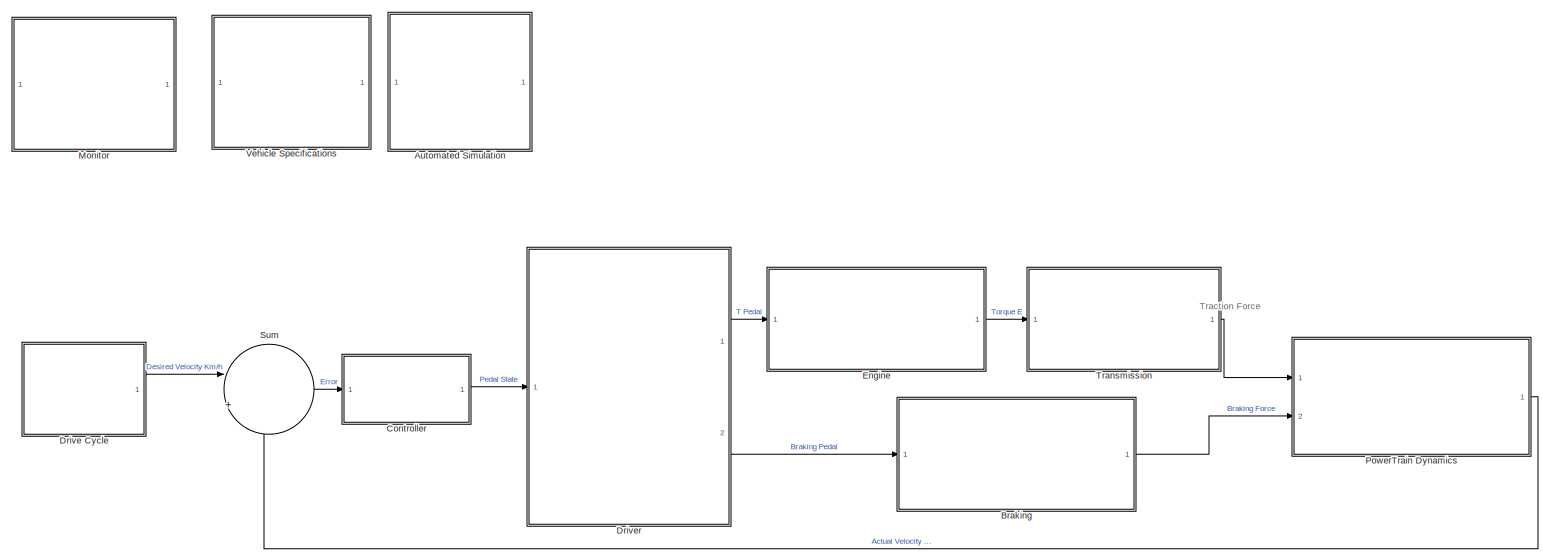
[diagram: root canvas - part 1/1, most of the canvas]
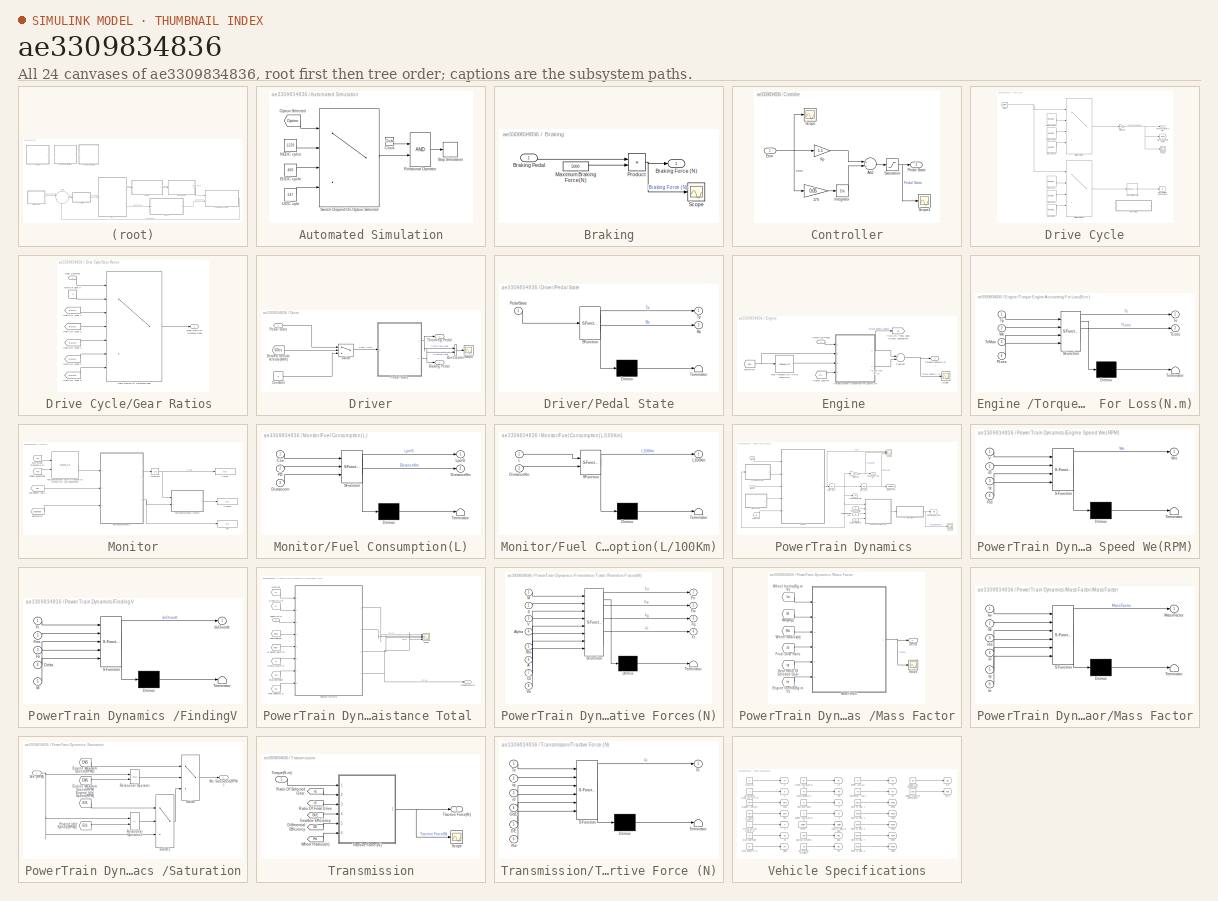
[diagram: thumbnail index - all 24 canvases of the model, root first then tree order]
MODEL slx_ae3309834836
KIND model
CONFIG AbsTol = auto
CONFIG FixedStep = 0.1
CONFIG MaxStep = auto
CONFIG MinStep = auto
CONFIG RelTol = 1e-3
CONFIG SampleTimeConstraint = Unconstrained
CONFIG Solver = ode3
CONFIG SolverMode = Auto
CONFIG SolverName = ode3
CONFIG StartTime = 0.0
CONFIG StopTime = 1220
BLOCK [SubSystem] Automated Simulation
  Ports = []
  RequestExecContextInheritance = off
  Variant = off
BLOCK [Clock] Automated Simulation/Clock
BLOCK [Constant] Automated Simulation/EUDC cycle
  Value = 400
BLOCK [Constant] Automated Simulation/NEDC cylce
  Value = 1220
BLOCK [From] Automated Simulation/Option Selected
  GotoTag = Option
  TagVisibility = global
BLOCK [RelationalOperator] Automated Simulation/Relational Operator
  InputSameDT = off
  OutDataTypeStr = boolean
  Ports = [2, 1]
BLOCK [Stop] Automated Simulation/Stop Simulation
BLOCK [MultiPortSwitch] Automated Simulation/Switch Depend On Option Selected 
  InputSameDT = off
  Ports = [4, 1]
  SaturateOnIntegerOverflow = off
BLOCK [Constant] Automated Simulation/UDC cyle
  Value = 247
BLOCK [SubSystem] Braking
  Ports = [1, 1]
  RequestExecContextInheritance = off
  Variant = off
BLOCK [Outport] Braking/Braking Force (N)
  IconDisplay = Port number
BLOCK [Inport] Braking/Braking Pedal
  IconDisplay = Port number
BLOCK [Constant] Braking/Maximum Braking Force(N)
  Value = 5000
BLOCK [Product] Braking/Product
  InputSameDT = off
  OutDataTypeStr = Inherit: Inherit via internal rule
  Ports = [2, 1]
  RndMeth = Floor
  SaturateOnIntegerOverflow = off
BLOCK [Scope] Braking/Scope
  Ports = [1]
  ScopeSpecificationString = C++SS(StrPVP('Location','[1, 48, 1367, 727]'),StrPVP('Open','off'),MxPVP('AxesTitles',24,'struct(''axes1'',''%<SignalLabel>'')'),MxPVP('ScopeGraphics',28,'struct(''FigureColor'',''[0.5 0.5 0.5]'',''AxesColor'',''[0 0 0]'',''AxesTickColor'',''[1 1 1]'',''LineColors'',''[1 1 0;1 0 1;0 1 1;1 0 0;0 1 0;0 0 1]'',''LineStyles'',''-|-|-|-|-|-'',''LineWidths'',''[0.5 0.5 0.5 0.5 0.5 0.5]'',''MarkerStyles'...<+337ch>
BLOCK [SubSystem] Controller
  Ports = [1, 1]
  RequestExecContextInheritance = off
  Variant = off
BLOCK [Gain] Controller/1//Ti
  Gain = 0.05
  OutDataTypeStr = Inherit: Inherit via internal rule
  ParamDataTypeStr = Inherit: Inherit via internal rule
  SaturateOnIntegerOverflow = off
BLOCK [Sum] Controller/Add
  InputSameDT = off
  OutDataTypeStr = Inherit: Inherit via internal rule
  Ports = [2, 1]
  SaturateOnIntegerOverflow = off
BLOCK [Inport] Controller/Error
  IconDisplay = Port number
BLOCK [Integrator] Controller/Integrator
  Ports = [1, 1]
BLOCK [Gain] Controller/Kp
  Gain = 1.5
  OutDataTypeStr = Inherit: Inherit via internal rule
  ParamDataTypeStr = Inherit: Inherit via internal rule
  SaturateOnIntegerOverflow = off
BLOCK [Outport] Controller/Pedal State
  IconDisplay = Port number
BLOCK [Saturate] Controller/Saturation
  InputPortMap = u0
  LowerLimit = -1
  Ports = [1, 1]
  UpperLimit = 1
BLOCK [Scope] Controller/Scope
  Ports = [1]
  ScopeSpecificationString = C++SS(StrPVP('Location','[5, 48, 1371, 727]'),StrPVP('Open','off'),MxPVP('AxesTitles',24,'struct(''axes1'',''%<SignalLabel>'')'),MxPVP('ScopeGraphics',28,'struct(''FigureColor'',''[0.5 0.5 0.5]'',''AxesColor'',''[0 0 0]'',''AxesTickColor'',''[1 1 1]'',''LineColors'',''[1 1 0;1 0 1;0 1 1;1 0 0;0 1 0;0 0 1]'',''LineStyles'',''-|-|-|-|-|-'',''LineWidths'',''[0.5 0.5 0.5 0.5 0.5 0.5]'',''MarkerStyles'...<+342ch>
BLOCK [Scope] Controller/Scope1
  Ports = [1]
  ScopeSpecificationString = C++SS(StrPVP('Location','[5, 48, 1371, 727]'),StrPVP('Open','off'),MxPVP('AxesTitles',24,'struct(''axes1'',''%<SignalLabel>'')'),MxPVP('ScopeGraphics',28,'struct(''FigureColor'',''[0.5 0.5 0.5]'',''AxesColor'',''[0 0 0]'',''AxesTickColor'',''[1 1 1]'',''LineColors'',''[1 1 0;1 0 1;0 1 1;1 0 0;0 1 0;0 0 1]'',''LineStyles'',''-|-|-|-|-|-'',''LineWidths'',''[0.5 0.5 0.5 0.5 0.5 0.5]'',''MarkerStyles'...<+339ch>
BLOCK [SubSystem] Drive Cycle
  Ports = [0, 1]
  RequestExecContextInheritance = off
  Variant = off
BLOCK [Goto] Drive Cycle/Desired Velocity (Km//h)
  GotoTag = VDes
  TagVisibility = global
BLOCK [Outport] Drive Cycle/Desired Velocity(Km//h)
  IconDisplay = Port number
BLOCK [Reference] Drive Cycle/EUDC(Gear)  REF=simulink/Sources/Repeating
Sequence
  Ports = [0, 1]
  SourceBlock = simulink/Sources/Repeating\nSequence
  SourceType = Repeating table
BLOCK [Reference] Drive Cycle/EUDC(Speed)  REF=simulink/Sources/Repeating
Sequence
  Ports = [0, 1]
  SourceBlock = simulink/Sources/Repeating\nSequence
  SourceType = Repeating table
BLOCK [Goto] Drive Cycle/Gear Ratio of Selected Gear
  GotoTag = ig
  TagVisibility = global
BLOCK [SubSystem] Drive Cycle/Gear Ratios 
  Ports = [1, 1]
  RequestExecContextInheritance = off
  Variant = off
BLOCK [Outport] Drive Cycle/Gear Ratios /Gear Ratio Of Selected Gear
  IconDisplay = Port number
BLOCK [MultiPortSwitch] Drive Cycle/Gear Ratios /Gear Ratios Of Selected Gear
  DataPortIndices = {0,1,2,3,4,5}
  DataPortOrder = Specify indices
  InputSameDT = off
  Inputs = 6
  Ports = [7, 1]
  SaturateOnIntegerOverflow = off
BLOCK [Inport] Drive Cycle/Gear Ratios /Gear Selected
  IconDisplay = Port number
BLOCK [From] Drive Cycle/Gear Ratios /Ratio Of Gear 1 
  GotoTag = ROG1
  TagVisibility = global
BLOCK [From] Drive Cycle/Gear Ratios /Ratio Of Gear 2 
  GotoTag = ROG2
  TagVisibility = global
BLOCK [From] Drive Cycle/Gear Ratios /Ratio Of Gear 3 
  GotoTag = ROG3
  TagVisibility = global
BLOCK [From] Drive Cycle/Gear Ratios /Ratio Of Gear 4 
  GotoTag = ROG4
  TagVisibility = global
BLOCK [From] Drive Cycle/Gear Ratios /Ratio Of Gear 5 
  GotoTag = ROG5
  TagVisibility = global
BLOCK [Constant] Drive Cycle/Gear Ratios /Ratio of gear 0
  Value = 0
BLOCK [Lookup_n-D] Drive Cycle/Gear Ratios Table 
  BreakpointsForDimension1 = [0 1 2 3 4 5]
  NumberOfTableDimensions = 1
  Ports = [1, 1]
  RndMeth = Simplest
  Table = [0 3.62 2.22 1.51 1.08 0.85]
BLOCK [MultiPortSwitch] Drive Cycle/Multiport Switch
  InputSameDT = off
  Ports = [4, 1]
  SaturateOnIntegerOverflow = off
BLOCK [MultiPortSwitch] Drive Cycle/Multiport Switch2
  InputSameDT = off
  Ports = [4, 1]
  SaturateOnIntegerOverflow = off
BLOCK [Reference] Drive Cycle/NEDC(Gear)   REF=simulink/Sources/Repeating
Sequence
  Ports = [0, 1]
  SourceBlock = simulink/Sources/Repeating\nSequence
  SourceType = Repeating table
BLOCK [Reference] Drive Cycle/NEDC(Speed)   REF=simulink/Sources/Repeating
Sequence
  Ports = [0, 1]
  SourceBlock = simulink/Sources/Repeating\nSequence
  SourceType = Repeating table
BLOCK [From] Drive Cycle/Option
  GotoTag = Option
  TagVisibility = global
BLOCK [Scope] Drive Cycle/Scope
  Ports = [1]
  ScopeSpecificationString = C++SS(StrPVP('Location','[1, 48, 1367, 727]'),StrPVP('Open','off'),MxPVP('AxesTitles',24,'struct(''axes1'',''%<SignalLabel>'')'),MxPVP('ScopeGraphics',28,'struct(''FigureColor'',''[0.5 0.5 0.5]'',''AxesColor'',''[0 0 0]'',''AxesTickColor'',''[1 1 1]'',''LineColors'',''[1 1 0;1 0 1;0 1 1;1 0 0;0 1 0;0 0 1]'',''LineStyles'',''-|-|-|-|-|-'',''LineWidths'',''[0.5 0.5 0.5 0.5 0.5 0.5]'',''MarkerStyles'...<+297ch>
BLOCK [Reference] Drive Cycle/UDC(Gear)  REF=simulink/Sources/Repeating
Sequence
  Ports = [0, 1]
  SourceBlock = simulink/Sources/Repeating\nSequence
  SourceType = Repeating table
BLOCK [Reference] Drive Cycle/UDC(Speed)  REF=simulink/Sources/Repeating
Sequence
  Ports = [0, 1]
  SourceBlock = simulink/Sources/Repeating\nSequence
  SourceType = Repeating table
BLOCK [Gain] Drive Cycle/m//s to Km//h
  Gain = 3.6
  OutDataTypeStr = Inherit: Inherit via internal rule
  ParamDataTypeStr = Inherit: Inherit via internal rule
  SaturateOnIntegerOverflow = off
BLOCK [SubSystem] Driver
  Ports = [1, 2]
  RequestExecContextInheritance = off
  Variant = off
BLOCK [Outport] Driver/Braking Pedal
  IconDisplay = Port number
  Port = 2
BLOCK [BusCreator] Driver/Bus Creator
  DisplayOption = bar
  InheritFromInputs = on
  Inputs = 2
  Ports = [2, 1]
BLOCK [Constant] Driver/Constant
  Value = 0
BLOCK [From] Driver/Desired Vehicle velocity (km//h)
  GotoTag = VDes
  TagVisibility = global
BLOCK [SubSystem] Driver/Pedal State
  ErrorFcn = Stateflow.Translate.translate
  PermitHierarchicalResolution = ExplicitOnly
  Ports = [1, 2]
  RequestExecContextInheritance = off
  SFBlockType = MATLAB Function
  TreatAsAtomicUnit = on
  Variant = off
BLOCK [Inport] Driver/Pedal State 
  IconDisplay = Port number
BLOCK [Demux] Driver/Pedal State/ Demux 
  Outputs = 1
  Ports = [1, 1]
BLOCK [S-Function] Driver/Pedal State/ SFunction 
  EnableBusSupport = on
  FunctionName = sf_sfun
  PortCounts = [1 3]
  Ports = [1, 3]
  SFunctionDeploymentMode = off
  Tag = Stateflow S-Function PowerTrainModeling 9
BLOCK [Terminator] Driver/Pedal State/ Terminator 
BLOCK [Outport] Driver/Pedal State/Bp
  IconDisplay = Port number
  Port = 2
BLOCK [Inport] Driver/Pedal State/PedalState
  IconDisplay = Port number
BLOCK [Outport] Driver/Pedal State/Tp
  IconDisplay = Port number
BLOCK [Scope] Driver/Scope
  Ports = [1]
  ScopeSpecificationString = C++SS(StrPVP('Location','[5, 48, 1367, 727]'),StrPVP('Open','off'),MxPVP('AxesTitles',24,'struct(''axes1'',''%<SignalLabel>'')'),MxPVP('ScopeGraphics',28,'struct(''FigureColor'',''[0.5 0.5 0.5]'',''AxesColor'',''[0 0 0]'',''AxesTickColor'',''[1 1 1]'',''LineColors'',''[1 1 0;1 0 1;0 1 1;1 0 0;0 1 0;0 0 1]'',''LineStyles'',''-|-|-|-|-|-'',''LineWidths'',''[0.5 0.5 0.5 0.5 0.5 0.5]'',''MarkerStyles'...<+297ch>
BLOCK [Switch] Driver/Switch
  Criteria = u2 > Threshold
  InputSameDT = off
  SaturateOnIntegerOverflow = off
  Threshold = 0.1
BLOCK [Outport] Driver/Throttling Pedal
  IconDisplay = Port number
BLOCK [SubSystem] Engine 
  Ports = [1, 1]
  RequestExecContextInheritance = off
  Variant = off
BLOCK [Lookup_n-D] Engine /Max Torque(N.m) In Fct We(RPM)
  BreakpointsForDimension1 = [500\n1000\n1500\n2000\n2500\n3000\n3500\n4000\n4500\n5000\n5500\n6000\n]
  NumberOfTableDimensions = 1
  Ports = [1, 1]
  RndMeth = Simplest
  Table = [112.32\n134.16\n146.64\n158.34\n165.36\n162.24\n159.12\n159.9\n165.36\n164.58\n160.68\n151.32\n]
BLOCK [From] Engine /Power Loss(W)
  GotoTag = PL
  TagVisibility = global
BLOCK [Scope] Engine /Scope
  Ports = [1]
  ScopeSpecificationString = C++SS(StrPVP('Location','[5, 48, 1367, 727]'),StrPVP('Open','off'),MxPVP('AxesTitles',24,'struct(''axes1'',''%<SignalLabel>'')'),MxPVP('ScopeGraphics',28,'struct(''FigureColor'',''[0.5 0.5 0.5]'',''AxesColor'',''[0 0 0]'',''AxesTickColor'',''[1 1 1]'',''LineColors'',''[1 1 0;1 0 1;0 1 1;1 0 0;0 1 0;0 0 1]'',''LineStyles'',''-|-|-|-|-|-'',''LineWidths'',''[0.5 0.5 0.5 0.5 0.5 0.5]'',''MarkerStyles'...<+414ch>
BLOCK [Sum] Engine /Subtract
  InputSameDT = off
  Inputs = +-
  OutDataTypeStr = Inherit: Inherit via internal rule
  Ports = [2, 1]
  SaturateOnIntegerOverflow = off
BLOCK [Goto] Engine /Te(N.m) Total used to compute Fuel consumption
  GotoTag = Te
  TagVisibility = global
BLOCK [Inport] Engine /Throttling Pedal
  IconDisplay = Port number
BLOCK [SubSystem] Engine /Torque Engine Accounting For Loss(N.m)
  ErrorFcn = Stateflow.Translate.translate
  PermitHierarchicalResolution = ExplicitOnly
  Ports = [4, 2]
  RequestExecContextInheritance = off
  SFBlockType = MATLAB Function
  TreatAsAtomicUnit = on
  Variant = off
BLOCK [Demux] Engine /Torque Engine Accounting For Loss(N.m)/ Demux 
  Outputs = 1
  Ports = [1, 1]
BLOCK [S-Function] Engine /Torque Engine Accounting For Loss(N.m)/ SFunction 
  EnableBusSupport = on
  FunctionName = sf_sfun
  PortCounts = [4 3]
  Ports = [4, 3]
  SFunctionDeploymentMode = off
  Tag = Stateflow S-Function PowerTrainModeling 6
BLOCK [Terminator] Engine /Torque Engine Accounting For Loss(N.m)/ Terminator 
BLOCK [Inport] Engine /Torque Engine Accounting For Loss(N.m)/PLoss
  IconDisplay = Port number
  Port = 4
BLOCK [Outport] Engine /Torque Engine Accounting For Loss(N.m)/TLoss
  IconDisplay = Port number
  Port = 2
BLOCK [Outport] Engine /Torque Engine Accounting For Loss(N.m)/Te
  IconDisplay = Port number
BLOCK [Inport] Engine /Torque Engine Accounting For Loss(N.m)/TeMax
  IconDisplay = Port number
  Port = 3
BLOCK [Inport] Engine /Torque Engine Accounting For Loss(N.m)/Tp
  IconDisplay = Port number
BLOCK [Inport] Engine /Torque Engine Accounting For Loss(N.m)/We
  IconDisplay = Port number
  Port = 2
BLOCK [Outport] Engine /Torque Engine(N.m)
  IconDisplay = Port number
BLOCK [From] Engine /We(RPM)
  GotoTag = We
  TagVisibility = global
BLOCK [SubSystem] Monitor
  Ports = []
  RequestExecContextInheritance = off
  Variant = off
BLOCK [From] Monitor/Distance(m)
  GotoTag = Distance
  TagVisibility = global
BLOCK [From] Monitor/Engine Speed(RPM)
  GotoTag = We
  TagVisibility = global
BLOCK [Lookup_n-D] Monitor/Fuel Consumption (Kg//h) in function Of Torque(N.m) and Speed(RPM)
  BreakpointsForDimension1 = [15.6\n31.2\n46.8\n62.4\n78\n93.6\n109.2\n124.8\n140.4\n156\n171.6\n]
  BreakpointsForDimension2 = [500	1000	1500	2000	2500	3000	3500	4000	4500	5000	5500	6000\n]
  Ports = [2, 1]
  RndMeth = Simplest
  Table = [0.50	1.00	1.50	1.94	2.28	2.56	2.68	3.41	3.97	5.59	6.79	7.41\n0.72	1.32	1.99	2.59	3.12	3.58	3.89	4.66	5.77	7.53	9.19	10.37\n0.91	1.65	2.54	3.28	3.93	4.58	4.94	6.22	7.75	9.26	11.35	12.70\n1.08	2.01	3.00	3.93	4.65	5.47	6.42	7.95	9.32	10.88	13.13	14.68\n1.25	2.32	3.44	4.50	5.44	6.44	7.92	9.23	10.78	12.50	14.72	16.41\n1.53	2.81	3.86	5.08	6.04	7.52	9.18	10.80	12.31	13.94	15.91	18.42\n1.73	3.23	4.37	5.60	7.00...<+313ch>
BLOCK [SubSystem] Monitor/Fuel Consumption(L)
  ErrorFcn = Stateflow.Translate.translate
  PermitHierarchicalResolution = ExplicitOnly
  Ports = [3, 2]
  RequestExecContextInheritance = off
  SFBlockType = MATLAB Function
  TreatAsAtomicUnit = on
  Variant = off
BLOCK [Demux] Monitor/Fuel Consumption(L)/ Demux 
  Outputs = 1
  Ports = [1, 1]
BLOCK [S-Function] Monitor/Fuel Consumption(L)/ SFunction 
  EnableBusSupport = on
  FunctionName = sf_sfun
  PortCounts = [3 3]
  Ports = [3, 3]
  SFunctionDeploymentMode = off
  Tag = Stateflow S-Function PowerTrainModeling 7
BLOCK [Terminator] Monitor/Fuel Consumption(L)/ Terminator 
BLOCK [Inport] Monitor/Fuel Consumption(L)/Con
  IconDisplay = Port number
BLOCK [Outport] Monitor/Fuel Consumption(L)/DistanceKm
  IconDisplay = Port number
  Port = 2
BLOCK [Inport] Monitor/Fuel Consumption(L)/Distancem
  IconDisplay = Port number
  Port = 3
BLOCK [Inport] Monitor/Fuel Consumption(L)/FD
  IconDisplay = Port number
  Port = 2
BLOCK [Outport] Monitor/Fuel Consumption(L)/LperS
  IconDisplay = Port number
BLOCK [SubSystem] Monitor/Fuel Consumption(L//100Km)
  ErrorFcn = Stateflow.Translate.translate
  PermitHierarchicalResolution = ExplicitOnly
  Ports = [2, 1]
  RequestExecContextInheritance = off
  SFBlockType = MATLAB Function
  TreatAsAtomicUnit = on
  Variant = off
BLOCK [Demux] Monitor/Fuel Consumption(L//100Km)/ Demux 
  Outputs = 1
  Ports = [1, 1]
BLOCK [S-Function] Monitor/Fuel Consumption(L//100Km)/ SFunction 
  EnableBusSupport = on
  FunctionName = sf_sfun
  PortCounts = [2 2]
  Ports = [2, 2]
  SFunctionDeploymentMode = off
  Tag = Stateflow S-Function PowerTrainModeling 8
BLOCK [Terminator] Monitor/Fuel Consumption(L//100Km)/ Terminator 
BLOCK [Inport] Monitor/Fuel Consumption(L//100Km)/DistanceKm
  IconDisplay = Port number
  Port = 2
BLOCK [Inport] Monitor/Fuel Consumption(L//100Km)/L
  IconDisplay = Port number
BLOCK [Outport] Monitor/Fuel Consumption(L//100Km)/L100Km
  IconDisplay = Port number
BLOCK [From] Monitor/Fuel Density (Kg//L)
  GotoTag = FD
  TagVisibility = global
BLOCK [Integrator] Monitor/Integrator
  Ports = [1, 1]
BLOCK [Display] Monitor/Km
  Decimation = 1
  Ports = [1]
BLOCK [Display] Monitor/L//100Km
  Decimation = 1
  Ports = [1]
BLOCK [Display] Monitor/L//Cycle
  Decimation = 1
  Ports = [1]
BLOCK [From] Monitor/Total Torque Produced(N.m)
  GotoTag = Te
  TagVisibility = global
BLOCK [SubSystem] PowerTrain Dynamics 
  Ports = [2, 1]
  RequestExecContextInheritance = off
  Variant = off
BLOCK [Outport] PowerTrain Dynamics / Actual Velocity(Km//h)
  IconDisplay = Port number
BLOCK [Goto] PowerTrain Dynamics /Actual Velocity(m//s)
  GotoTag = Va
  TagVisibility = global
BLOCK [Goto] PowerTrain Dynamics /Distance(m)
  GotoTag = Distance
  TagVisibility = global
BLOCK [SubSystem] PowerTrain Dynamics /Engine  Speed We(RPM)
  ErrorFcn = Stateflow.Translate.translate
  PermitHierarchicalResolution = ExplicitOnly
  Ports = [4, 1]
  RequestExecContextInheritance = off
  SFBlockType = MATLAB Function
  TreatAsAtomicUnit = on
  Variant = off
BLOCK [Demux] PowerTrain Dynamics /Engine  Speed We(RPM)/ Demux 
  Outputs = 1
  Ports = [1, 1]
BLOCK [S-Function] PowerTrain Dynamics /Engine  Speed We(RPM)/ SFunction 
  EnableBusSupport = on
  FunctionName = sf_sfun
  PortCounts = [4 2]
  Ports = [4, 2]
  SFunctionDeploymentMode = off
  Tag = Stateflow S-Function PowerTrainModeling 4
BLOCK [Terminator] PowerTrain Dynamics /Engine  Speed We(RPM)/ Terminator 
BLOCK [Inport] PowerTrain Dynamics /Engine  Speed We(RPM)/Rd
  IconDisplay = Port number
  Port = 4
BLOCK [Inport] PowerTrain Dynamics /Engine  Speed We(RPM)/V
  IconDisplay = Port number
BLOCK [Outport] PowerTrain Dynamics /Engine  Speed We(RPM)/We
  IconDisplay = Port number
BLOCK [Inport] PowerTrain Dynamics /Engine  Speed We(RPM)/i0
  IconDisplay = Port number
  Port = 2
BLOCK [Inport] PowerTrain Dynamics /Engine  Speed We(RPM)/ig
  IconDisplay = Port number
  Port = 3
BLOCK [Inport] PowerTrain Dynamics /Fb(N)
  IconDisplay = Port number
  Port = 2
BLOCK [From] PowerTrain Dynamics /Final Drive Ratio
  GotoTag = i0
  TagVisibility = global
BLOCK [SubSystem] PowerTrain Dynamics /FindingV
  ErrorFcn = Stateflow.Translate.translate
  PermitHierarchicalResolution = ExplicitOnly
  Ports = [5, 1]
  RequestExecContextInheritance = off
  SFBlockType = MATLAB Function
  TreatAsAtomicUnit = on
  Variant = off
BLOCK [Demux] PowerTrain Dynamics /FindingV/ Demux 
  Outputs = 1
  Ports = [1, 1]
BLOCK [S-Function] PowerTrain Dynamics /FindingV/ SFunction 
  EnableBusSupport = on
  FunctionName = sf_sfun
  PortCounts = [5 2]
  Ports = [5, 2]
  SFunctionDeploymentMode = off
  Tag = Stateflow S-Function PowerTrainModeling 3
BLOCK [Terminator] PowerTrain Dynamics /FindingV/ Terminator 
BLOCK [Inport] PowerTrain Dynamics /FindingV/Delta
  IconDisplay = Port number
  Port = 4
BLOCK [Inport] PowerTrain Dynamics /FindingV/Fb
  IconDisplay = Port number
  Port = 3
BLOCK [Inport] PowerTrain Dynamics /FindingV/Fres
  IconDisplay = Port number
  Port = 2
BLOCK [Inport] PowerTrain Dynamics /FindingV/Ft
  IconDisplay = Port number
BLOCK [Inport] PowerTrain Dynamics /FindingV/M
  IconDisplay = Port number
  Port = 5
BLOCK [Outport] PowerTrain Dynamics /FindingV/dvOverdt
  IconDisplay = Port number
BLOCK [SubSystem] PowerTrain Dynamics /Fresistance Total 
  Ports = [1, 1]
  RequestExecContextInheritance = off
  Variant = off
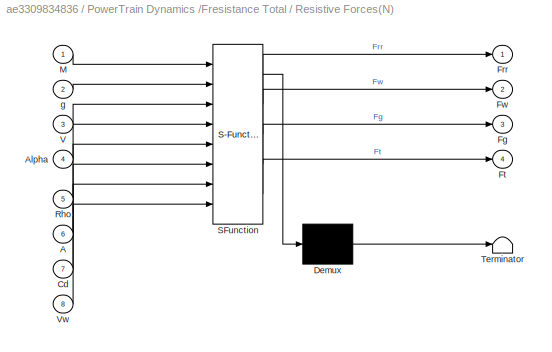
BLOCK [SubSystem] PowerTrain Dynamics /Fresistance Total / Resistive Forces(N)
  ErrorFcn = Stateflow.Translate.translate
  PermitHierarchicalResolution = ExplicitOnly
  Ports = [8, 4]
  RequestExecContextInheritance = off
  SFBlockType = MATLAB Function
  TreatAsAtomicUnit = on
  Variant = off
BLOCK [Demux] PowerTrain Dynamics /Fresistance Total / Resistive Forces(N)/ Demux 
  Outputs = 1
  Ports = [1, 1]
BLOCK [S-Function] PowerTrain Dynamics /Fresistance Total / Resistive Forces(N)/ SFunction 
  EnableBusSupport = on
  FunctionName = sf_sfun
  PortCounts = [8 5]
  Ports = [8, 5]
  SFunctionDeploymentMode = off
  Tag = Stateflow S-Function PowerTrainModeling 2
BLOCK [Terminator] PowerTrain Dynamics /Fresistance Total / Resistive Forces(N)/ Terminator 
BLOCK [Inport] PowerTrain Dynamics /Fresistance Total / Resistive Forces(N)/A
  IconDisplay = Port number
  Port = 6
BLOCK [Inport] PowerTrain Dynamics /Fresistance Total / Resistive Forces(N)/Alpha
  IconDisplay = Port number
  Port = 4
BLOCK [Inport] PowerTrain Dynamics /Fresistance Total / Resistive Forces(N)/Cd
  IconDisplay = Port number
  Port = 7
BLOCK [Outport] PowerTrain Dynamics /Fresistance Total / Resistive Forces(N)/Fg
  IconDisplay = Port number
  Port = 3
BLOCK [Outport] PowerTrain Dynamics /Fresistance Total / Resistive Forces(N)/Frr
  IconDisplay = Port number
BLOCK [Outport] PowerTrain Dynamics /Fresistance Total / Resistive Forces(N)/Ft
  IconDisplay = Port number
  Port = 4
BLOCK [Outport] PowerTrain Dynamics /Fresistance Total / Resistive Forces(N)/Fw
  IconDisplay = Port number
  Port = 2
BLOCK [Inport] PowerTrain Dynamics /Fresistance Total / Resistive Forces(N)/M
  IconDisplay = Port number
BLOCK [Inport] PowerTrain Dynamics /Fresistance Total / Resistive Forces(N)/Rho
  IconDisplay = Port number
  Port = 5
BLOCK [Inport] PowerTrain Dynamics /Fresistance Total / Resistive Forces(N)/V
  IconDisplay = Port number
  Port = 3
BLOCK [Inport] PowerTrain Dynamics /Fresistance Total / Resistive Forces(N)/Vw
  IconDisplay = Port number
  Port = 8
BLOCK [Inport] PowerTrain Dynamics /Fresistance Total / Resistive Forces(N)/g
  IconDisplay = Port number
  Port = 2
BLOCK [From] PowerTrain Dynamics /Fresistance Total /Air Density(Kg//m^2)
  GotoTag = Rho
  TagVisibility = global
BLOCK [From] PowerTrain Dynamics /Fresistance Total /Alpha(degree)
  GotoTag = Alpha
  TagVisibility = global
BLOCK [From] PowerTrain Dynamics /Fresistance Total /Drag Coefficiant
  GotoTag = Cd
  TagVisibility = global
BLOCK [From] PowerTrain Dynamics /Fresistance Total /Frontal Area(m^2)
  GotoTag = Af
  TagVisibility = global
BLOCK [Outport] PowerTrain Dynamics /Fresistance Total /FtResistance(N)
  IconDisplay = Port number
BLOCK [From] PowerTrain Dynamics /Fresistance Total /Gravity(m//s^2)
  GotoTag = G
  TagVisibility = global
BLOCK [From] PowerTrain Dynamics /Fresistance Total /Mass(Kg)
  GotoTag = M
  TagVisibility = global
BLOCK [Scope] PowerTrain Dynamics /Fresistance Total /Scope
  NumInputPorts = 4
  Ports = [4]
  ScopeSpecificationString = C++SS(StrPVP('Location','[5, 48, 1371, 727]'),StrPVP('Open','off'),MxPVP('AxesTitles',24,'struct(''axes1'',''%<SignalLabel>'',''axes2'',''%<SignalLabel>'',''axes3'',''%<SignalLabel>'',''axes4'',''%<SignalLabel>'')'),MxPVP('ScopeGraphics',28,'struct(''FigureColor'',''[0.5 0.5 0.5]'',''AxesColor'',''[0 0 0]'',''AxesTickColor'',''[1 1 1]'',''LineColors'',''[1 1 0;1 0 1;0 1 1;1 0 0;0 1 0;0 0 1]'',''Li...<+406ch>
BLOCK [Inport] PowerTrain Dynamics /Fresistance Total /Velocity(m//s)
  IconDisplay = Port number
BLOCK [From] PowerTrain Dynamics /Fresistance Total /Wind Speed(M//s)
  GotoTag = Vw
  TagVisibility = global
BLOCK [Inport] PowerTrain Dynamics /Ft(N)
  IconDisplay = Port number
BLOCK [Integrator] PowerTrain Dynamics /Integrator1
  Ports = [1, 1]
BLOCK [Integrator] PowerTrain Dynamics /Integrator2
  Ports = [1, 1]
BLOCK [SubSystem] PowerTrain Dynamics /Mass Factor
  Ports = [0, 1]
  RequestExecContextInheritance = off
  Variant = off
BLOCK [Outport] PowerTrain Dynamics /Mass Factor/Delta
  IconDisplay = Port number
BLOCK [From] PowerTrain Dynamics /Mass Factor/Engine Inertia(Kg.m^2)
  GotoTag = Ie
  TagVisibility = global
BLOCK [From] PowerTrain Dynamics /Mass Factor/Final Drive Ratio
  GotoTag = i0
  TagVisibility = global
BLOCK [From] PowerTrain Dynamics /Mass Factor/Gear Ratio Of Selected Gear
  GotoTag = ig
  TagVisibility = global
BLOCK [SubSystem] PowerTrain Dynamics /Mass Factor/Mass Factor
  ErrorFcn = Stateflow.Translate.translate
  PermitHierarchicalResolution = ExplicitOnly
  Ports = [6, 1]
  RequestExecContextInheritance = off
  SFBlockType = MATLAB Function
  TreatAsAtomicUnit = on
  Variant = off
BLOCK [Demux] PowerTrain Dynamics /Mass Factor/Mass Factor/ Demux 
  Outputs = 1
  Ports = [1, 1]
BLOCK [S-Function] PowerTrain Dynamics /Mass Factor/Mass Factor/ SFunction 
  EnableBusSupport = on
  FunctionName = sf_sfun
  PortCounts = [6 2]
  Ports = [6, 2]
  SFunctionDeploymentMode = off
  Tag = Stateflow S-Function PowerTrainModeling 1
BLOCK [Terminator] PowerTrain Dynamics /Mass Factor/Mass Factor/ Terminator 
BLOCK [Inport] PowerTrain Dynamics /Mass Factor/Mass Factor/Ie
  IconDisplay = Port number
  Port = 6
BLOCK [Inport] PowerTrain Dynamics /Mass Factor/Mass Factor/Iw
  IconDisplay = Port number
BLOCK [Inport] PowerTrain Dynamics /Mass Factor/Mass Factor/M
  IconDisplay = Port number
  Port = 2
BLOCK [Outport] PowerTrain Dynamics /Mass Factor/Mass Factor/MassFactor
  IconDisplay = Port number
BLOCK [Inport] PowerTrain Dynamics /Mass Factor/Mass Factor/Rd
  IconDisplay = Port number
  Port = 3
BLOCK [Inport] PowerTrain Dynamics /Mass Factor/Mass Factor/i0
  IconDisplay = Port number
  Port = 4
BLOCK [Inport] PowerTrain Dynamics /Mass Factor/Mass Factor/ig
  IconDisplay = Port number
  Port = 5
BLOCK [From] PowerTrain Dynamics /Mass Factor/Mass(Kg)
  GotoTag = M
  TagVisibility = global
BLOCK [Scope] PowerTrain Dynamics /Mass Factor/Scope
  Ports = [1]
  ScopeSpecificationString = C++SS(StrPVP('Location','[5, 48, 1371, 727]'),StrPVP('Open','off'),MxPVP('AxesTitles',24,'struct(''axes1'',''%<SignalLabel>'')'),MxPVP('ScopeGraphics',28,'struct(''FigureColor'',''[0.5 0.5 0.5]'',''AxesColor'',''[0 0 0]'',''AxesTickColor'',''[1 1 1]'',''LineColors'',''[1 1 0;1 0 1;0 1 1;1 0 0;0 1 0;0 0 1]'',''LineStyles'',''-|-|-|-|-|-'',''LineWidths'',''[0.5 0.5 0.5 0.5 0.5 0.5]'',''MarkerStyles'...<+338ch>
BLOCK [From] PowerTrain Dynamics /Mass Factor/Wheel Inertia(Kg.m^2)
  GotoTag = Iw
  TagVisibility = global
BLOCK [From] PowerTrain Dynamics /Mass Factor/Wheel Radius(m)
  GotoTag = Rd
  TagVisibility = global
BLOCK [From] PowerTrain Dynamics /Mass(Kg)
  GotoTag = M
  TagVisibility = global
BLOCK [From] PowerTrain Dynamics /Radius of Whell(m)
  GotoTag = Rd
  TagVisibility = global
BLOCK [From] PowerTrain Dynamics /Ratio Of Selected Gear
  GotoTag = ig
  TagVisibility = global
BLOCK [SubSystem] PowerTrain Dynamics /Saturation
  Ports = [1, 1]
  RequestExecContextInheritance = off
  Variant = off
BLOCK [From] PowerTrain Dynamics /Saturation/Engine Idle Speed(RPM)
  GotoTag = EIS
  TagVisibility = global
BLOCK [From] PowerTrain Dynamics /Saturation/Engine Idle Speed(RPM)1
  GotoTag = EIS
  TagVisibility = global
BLOCK [From] PowerTrain Dynamics /Saturation/Engine Maximum Speed(RPM)
  GotoTag = EMS
  TagVisibility = global
BLOCK [From] PowerTrain Dynamics /Saturation/Engine Maximum Speed(RPM)1
  GotoTag = EMS
  TagVisibility = global
BLOCK [RelationalOperator] PowerTrain Dynamics /Saturation/Relational Operator
  InputSameDT = off
  OutDataTypeStr = boolean
  Ports = [2, 1]
BLOCK [RelationalOperator] PowerTrain Dynamics /Saturation/Relational Operator1
  InputSameDT = off
  Operator = <=
  OutDataTypeStr = boolean
  Ports = [2, 1]
BLOCK [Switch] PowerTrain Dynamics /Saturation/Switch
  Criteria = u2 > Threshold
  InputSameDT = off
  SaturateOnIntegerOverflow = off
BLOCK [Switch] PowerTrain Dynamics /Saturation/Switch1
  Criteria = u2 > Threshold
  InputSameDT = off
  SaturateOnIntegerOverflow = off
BLOCK [Inport] PowerTrain Dynamics /Saturation/We (RPM)
  IconDisplay = Port number
BLOCK [Outport] PowerTrain Dynamics /Saturation/We Saturated(RPM)
  IconDisplay = Port number
BLOCK [Scope] PowerTrain Dynamics /Scope
  NumInputPorts = 3
  Ports = [3]
  ScopeSpecificationString = C++SS(StrPVP('Location','[5, 48, 1367, 727]'),StrPVP('Open','off'),MxPVP('AxesTitles',24,'struct(''axes1'',''%<SignalLabel>'',''axes2'',''%<SignalLabel>'',''axes3'',''%<SignalLabel>'')'),MxPVP('ScopeGraphics',28,'struct(''FigureColor'',''[0.501960784313725 0.501960784313725 0.501960784313725]'',''AxesColor'',''[0 0 0]'',''AxesTickColor'',''[1 1 1]'',''LineColors'',''[1 1 0;1 0 1;0 1 1;1 0 0;0 1 0;...<+473ch>
BLOCK [Scope] PowerTrain Dynamics /Scope3
  Ports = [1]
  ScopeSpecificationString = Simulink.scopes.TimeScopeBlockCfg('CurrentConfiguration', extmgr.ConfigurationSet(extmgr.Configuration('Core','General UI',true),extmgr.Configuration('Core','Source UI',true),extmgr.Configuration('Sources','WiredSimulink',true,'DataLoggingVariableName','ScopeData4','DataLoggingSaveFormat','StructureWithTime','DataLoggingDecimation','1','DataLoggingDecimateData',true),extmgr.Configuration('Visuals'...<+1649ch>
BLOCK [Goto] PowerTrain Dynamics /We Saturated(RPM)
  GotoTag = We
  TagVisibility = global
BLOCK [Gain] PowerTrain Dynamics /m//s to km//h
  Gain = 3.6
  OutDataTypeStr = Inherit: Inherit via internal rule
  ParamDataTypeStr = Inherit: Inherit via internal rule
  SaturateOnIntegerOverflow = off
BLOCK [Sum] Sum
  IconShape = round
  InputSameDT = off
  Inputs = |+-
  OutDataTypeStr = Inherit: Inherit via internal rule
  Ports = [2, 1]
  SaturateOnIntegerOverflow = off
BLOCK [SubSystem] Transmission
  Ports = [1, 1]
  RequestExecContextInheritance = off
  Variant = off
BLOCK [From] Transmission/Differential Efficiency
  GotoTag = DE
  TagVisibility = global
BLOCK [From] Transmission/Gearbox Efficiency
  GotoTag = GbE
  TagVisibility = global
BLOCK [From] Transmission/Ratio Of Final Drive
  GotoTag = i0
  TagVisibility = global
BLOCK [From] Transmission/Ratio Of Selected Gear
  GotoTag = ig
  TagVisibility = global
BLOCK [Scope] Transmission/Scope
  Ports = [1]
  ScopeSpecificationString = C++SS(StrPVP('Location','[5, 48, 1367, 727]'),StrPVP('Open','off'),MxPVP('AxesTitles',24,'struct(''axes1'',''%<SignalLabel>'')'),MxPVP('ScopeGraphics',28,'struct(''FigureColor'',''[0.5 0.5 0.5]'',''AxesColor'',''[0 0 0]'',''AxesTickColor'',''[1 1 1]'',''LineColors'',''[1 1 0;1 0 1;0 1 1;1 0 0;0 1 0;0 0 1]'',''LineStyles'',''-|-|-|-|-|-'',''LineWidths'',''[0.5 0.5 0.5 0.5 0.5 0.5]'',''MarkerStyles'...<+338ch>
BLOCK [Inport] Transmission/Torque(N.m)
  IconDisplay = Port number
BLOCK [SubSystem] Transmission/Tractive Force (N)
  ErrorFcn = Stateflow.Translate.translate
  PermitHierarchicalResolution = ExplicitOnly
  Ports = [6, 1]
  RequestExecContextInheritance = off
  SFBlockType = MATLAB Function
  TreatAsAtomicUnit = on
  Variant = off
BLOCK [Demux] Transmission/Tractive Force (N)/ Demux 
  Outputs = 1
  Ports = [1, 1]
BLOCK [S-Function] Transmission/Tractive Force (N)/ SFunction 
  EnableBusSupport = on
  FunctionName = sf_sfun
  PortCounts = [6 2]
  Ports = [6, 2]
  SFunctionDeploymentMode = off
  Tag = Stateflow S-Function PowerTrainModeling 5
BLOCK [Terminator] Transmission/Tractive Force (N)/ Terminator 
BLOCK [Inport] Transmission/Tractive Force (N)/DE
  IconDisplay = Port number
  Port = 5
BLOCK [Outport] Transmission/Tractive Force (N)/Ft
  IconDisplay = Port number
BLOCK [Inport] Transmission/Tractive Force (N)/GbE
  IconDisplay = Port number
  Port = 4
BLOCK [Inport] Transmission/Tractive Force (N)/Rd
  IconDisplay = Port number
  Port = 6
BLOCK [Inport] Transmission/Tractive Force (N)/Te
  IconDisplay = Port number
BLOCK [Inport] Transmission/Tractive Force (N)/i0
  IconDisplay = Port number
  Port = 3
BLOCK [Inport] Transmission/Tractive Force (N)/ig
  IconDisplay = Port number
  Port = 2
BLOCK [Outport] Transmission/Tractive Force(N)
  IconDisplay = Port number
BLOCK [From] Transmission/Wheel Radius(m)
  GotoTag = Rd
  TagVisibility = global
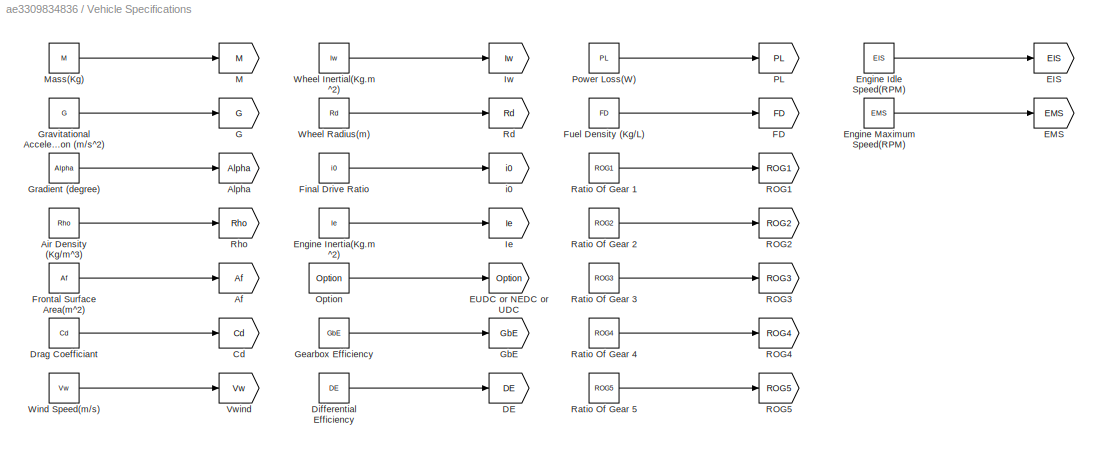
BLOCK [SubSystem] Vehicle Specifications
  Ports = []
  RequestExecContextInheritance = off
  Variant = off
BLOCK [Goto] Vehicle Specifications/Af
  GotoTag = Af
  TagVisibility = global
BLOCK [Constant] Vehicle Specifications/Air Density (Kg//m^3)
  Value = Rho
BLOCK [Goto] Vehicle Specifications/Alpha
  GotoTag = Alpha
  TagVisibility = global
BLOCK [Goto] Vehicle Specifications/Cd
  GotoTag = Cd
  TagVisibility = global
BLOCK [Goto] Vehicle Specifications/DE
  GotoTag = DE
  TagVisibility = global
BLOCK [Constant] Vehicle Specifications/Differential Efficiency
  Value = DE
BLOCK [Constant] Vehicle Specifications/Drag Coefficiant
  Value = Cd
BLOCK [Goto] Vehicle Specifications/EIS
  GotoTag = EIS
  TagVisibility = global
BLOCK [Goto] Vehicle Specifications/EMS
  GotoTag = EMS
  TagVisibility = global
BLOCK [Goto] Vehicle Specifications/EUDC or NEDC or UDC
  GotoTag = Option
  TagVisibility = global
BLOCK [Constant] Vehicle Specifications/Engine Idle Speed(RPM)
  Value = EIS
BLOCK [Constant] Vehicle Specifications/Engine Inertia(Kg.m^2)
  Value = Ie
BLOCK [Constant] Vehicle Specifications/Engine Maximum Speed(RPM)
  Value = EMS
BLOCK [Goto] Vehicle Specifications/FD
  GotoTag = FD
  TagVisibility = global
BLOCK [Constant] Vehicle Specifications/Final Drive Ratio
  Value = i0
BLOCK [Constant] Vehicle Specifications/Frontal Surface Area(m^2)
  Value = Af
BLOCK [Constant] Vehicle Specifications/Fuel Density (Kg//L)
  Value = FD
BLOCK [Goto] Vehicle Specifications/G
  GotoTag = G
  TagVisibility = global
BLOCK [Goto] Vehicle Specifications/GbE
  GotoTag = GbE
  TagVisibility = global
BLOCK [Constant] Vehicle Specifications/Gearbox Efficiency
  Value = GbE
BLOCK [Constant] Vehicle Specifications/Gradient (degree)
  Value = Alpha
BLOCK [Constant] Vehicle Specifications/Gravitational Acceleration (m//s^2)
  Value = G
BLOCK [Goto] Vehicle Specifications/Ie
  GotoTag = Ie
  TagVisibility = global
BLOCK [Goto] Vehicle Specifications/Iw
  GotoTag = Iw
  TagVisibility = global
BLOCK [Goto] Vehicle Specifications/M
  GotoTag = M
  TagVisibility = global
BLOCK [Constant] Vehicle Specifications/Mass(Kg)
  Value = M
BLOCK [Constant] Vehicle Specifications/Option
  Value = Option
BLOCK [Goto] Vehicle Specifications/PL
  GotoTag = PL
  TagVisibility = global
BLOCK [Constant] Vehicle Specifications/Power Loss(W)
  Value = PL
BLOCK [Goto] Vehicle Specifications/ROG1
  GotoTag = ROG1
  TagVisibility = global
BLOCK [Goto] Vehicle Specifications/ROG2
  GotoTag = ROG2
  TagVisibility = global
BLOCK [Goto] Vehicle Specifications/ROG3 
  GotoTag = ROG3
  TagVisibility = global
BLOCK [Goto] Vehicle Specifications/ROG4
  GotoTag = ROG4
  TagVisibility = global
BLOCK [Goto] Vehicle Specifications/ROG5
  GotoTag = ROG5
  TagVisibility = global
BLOCK [Constant] Vehicle Specifications/Ratio Of Gear  2
  Value = ROG2
BLOCK [Constant] Vehicle Specifications/Ratio Of Gear 1
  Value = ROG1
BLOCK [Constant] Vehicle Specifications/Ratio Of Gear 3
  Value = ROG3
BLOCK [Constant] Vehicle Specifications/Ratio Of Gear 4
  Value = ROG4
BLOCK [Constant] Vehicle Specifications/Ratio Of Gear 5
  Value = ROG5
BLOCK [Goto] Vehicle Specifications/Rd
  GotoTag = Rd
  TagVisibility = global
BLOCK [Goto] Vehicle Specifications/Rho
  GotoTag = Rho
  TagVisibility = global
BLOCK [Goto] Vehicle Specifications/Vwind
  GotoTag = Vw
  TagVisibility = global
BLOCK [Constant] Vehicle Specifications/Wheel Inertial(Kg.m^2)
  Value = Iw
BLOCK [Constant] Vehicle Specifications/Wheel Radius(m)
  Value = Rd
BLOCK [Constant] Vehicle Specifications/Wind Speed(m//s)
  Value = Vw
BLOCK [Goto] Vehicle Specifications/i0
  GotoTag = i0
  TagVisibility = global
ANNOTATION (root): Traction Force
ANNOTATION Engine : Torque Loss (N.m)
LINE Automated Simulation/Clock:1 -> Automated Simulation/Relational Operator:1
LINE Automated Simulation/EUDC cycle:1 -> Automated Simulation/Switch Depend On Option Selected :3
LINE Automated Simulation/NEDC cylce:1 -> Automated Simulation/Switch Depend On Option Selected :2
LINE Automated Simulation/Option Selected:1 -> Automated Simulation/Switch Depend On Option Selected :1
LINE Automated Simulation/Relational Operator:1 -> Automated Simulation/Stop Simulation:1
LINE Automated Simulation/Switch Depend On Option Selected :1 -> Automated Simulation/Relational Operator:2
LINE Automated Simulation/UDC cyle:1 -> Automated Simulation/Switch Depend On Option Selected :4
LINE Braking/Braking Pedal:1 -> Braking/Product:1
LINE Braking/Maximum Braking Force(N):1 -> Braking/Product:2
NET Braking/Product:1 -> Braking/Braking Force (N):1, Braking/Scope:1
LINE Braking:1 -> PowerTrain Dynamics :2
LINE Controller/1//Ti:1 -> Controller/Integrator:1
LINE Controller/Add:1 -> Controller/Saturation:1
NET Controller/Error:1 -> Controller/1//Ti:1, Controller/Kp:1, Controller/Scope:1
LINE Controller/Integrator:1 -> Controller/Add:2
LINE Controller/Kp:1 -> Controller/Add:1
NET Controller/Saturation:1 -> Controller/Pedal State:1, Controller/Scope1:1
LINE Controller:1 -> Driver:1
LINE Drive Cycle/EUDC(Gear):1 -> Drive Cycle/Multiport Switch2:3
LINE Drive Cycle/EUDC(Speed):1 -> Drive Cycle/Multiport Switch:3
LINE Drive Cycle/Gear Ratios /Gear Ratios Of Selected Gear:1 -> Drive Cycle/Gear Ratios /Gear Ratio Of Selected Gear:1
LINE Drive Cycle/Gear Ratios /Gear Selected:1 -> Drive Cycle/Gear Ratios /Gear Ratios Of Selected Gear:1
LINE Drive Cycle/Gear Ratios /Ratio Of Gear 1 :1 -> Drive Cycle/Gear Ratios /Gear Ratios Of Selected Gear:3
LINE Drive Cycle/Gear Ratios /Ratio Of Gear 2 :1 -> Drive Cycle/Gear Ratios /Gear Ratios Of Selected Gear:4
LINE Drive Cycle/Gear Ratios /Ratio Of Gear 3 :1 -> Drive Cycle/Gear Ratios /Gear Ratios Of Selected Gear:5
LINE Drive Cycle/Gear Ratios /Ratio Of Gear 4 :1 -> Drive Cycle/Gear Ratios /Gear Ratios Of Selected Gear:6
LINE Drive Cycle/Gear Ratios /Ratio Of Gear 5 :1 -> Drive Cycle/Gear Ratios /Gear Ratios Of Selected Gear:7
LINE Drive Cycle/Gear Ratios /Ratio of gear 0:1 -> Drive Cycle/Gear Ratios /Gear Ratios Of Selected Gear:2
LINE Drive Cycle/Gear Ratios Table :1 -> Drive Cycle/Gear Ratio of Selected Gear:1
LINE Drive Cycle/Multiport Switch2:1 -> Drive Cycle/Gear Ratios Table :1
LINE Drive Cycle/Multiport Switch:1 -> Drive Cycle/m//s to Km//h:1
LINE Drive Cycle/NEDC(Gear) :1 -> Drive Cycle/Multiport Switch2:2
LINE Drive Cycle/NEDC(Speed) :1 -> Drive Cycle/Multiport Switch:2
NET Drive Cycle/Option:1 -> Drive Cycle/Multiport Switch2:1, Drive Cycle/Multiport Switch:1
LINE Drive Cycle/UDC(Gear):1 -> Drive Cycle/Multiport Switch2:4
LINE Drive Cycle/UDC(Speed):1 -> Drive Cycle/Multiport Switch:4
NET Drive Cycle/m//s to Km//h:1 -> Drive Cycle/Desired Velocity (Km//h):1, Drive Cycle/Desired Velocity(Km//h):1, Drive Cycle/Scope:1
LINE Drive Cycle:1 -> Sum:1
LINE Driver/Bus Creator:1 -> Driver/Scope:1
LINE Driver/Constant:1 -> Driver/Switch:3
LINE Driver/Desired Vehicle velocity (km//h):1 -> Driver/Switch:2
LINE Driver/Pedal State :1 -> Driver/Switch:1
NET Driver/Pedal State:1 -> Driver/Bus Creator:1, Driver/Throttling Pedal:1
NET Driver/Pedal State:2 -> Driver/Braking Pedal:1, Driver/Bus Creator:2
LINE Driver/Switch:1 -> Driver/Pedal State:1
LINE Driver:1 -> Engine :1
LINE Driver:2 -> Braking:1
LINE Engine /Max Torque(N.m) In Fct We(RPM):1 -> Engine /Torque Engine Accounting For Loss(N.m):3
LINE Engine /Power Loss(W):1 -> Engine /Torque Engine Accounting For Loss(N.m):4
NET Engine /Subtract:1 -> Engine /Scope:1, Engine /Torque Engine(N.m):1
LINE Engine /Throttling Pedal:1 -> Engine /Torque Engine Accounting For Loss(N.m):1
NET Engine /Torque Engine Accounting For Loss(N.m):1 -> Engine /Subtract:1, Engine /Te(N.m) Total used to compute Fuel consumption:1
LINE Engine /Torque Engine Accounting For Loss(N.m):2 -> Engine /Subtract:2
NET Engine /We(RPM):1 -> Engine /Max Torque(N.m) In Fct We(RPM):1, Engine /Torque Engine Accounting For Loss(N.m):2
LINE Engine :1 -> Transmission:1
LINE Monitor/Distance(m):1 -> Monitor/Fuel Consumption(L):3
LINE Monitor/Engine Speed(RPM):1 -> Monitor/Fuel Consumption (Kg//h) in function Of Torque(N.m) and Speed(RPM):2
LINE Monitor/Fuel Consumption (Kg//h) in function Of Torque(N.m) and Speed(RPM):1 -> Monitor/Fuel Consumption(L):1
LINE Monitor/Fuel Consumption(L):1 -> Monitor/Integrator:1
NET Monitor/Fuel Consumption(L):2 -> Monitor/Fuel Consumption(L//100Km):2, Monitor/Km:1
LINE Monitor/Fuel Consumption(L//100Km):1 -> Monitor/L//100Km:1
LINE Monitor/Fuel Density (Kg//L):1 -> Monitor/Fuel Consumption(L):2
NET Monitor/Integrator:1 -> Monitor/Fuel Consumption(L//100Km):1, Monitor/L//Cycle:1
LINE Monitor/Total Torque Produced(N.m):1 -> Monitor/Fuel Consumption (Kg//h) in function Of Torque(N.m) and Speed(RPM):1
LINE PowerTrain Dynamics /Engine  Speed We(RPM):1 -> PowerTrain Dynamics /Saturation:1
LINE PowerTrain Dynamics /Fb(N):1 -> PowerTrain Dynamics /FindingV:3
LINE PowerTrain Dynamics /Final Drive Ratio:1 -> PowerTrain Dynamics /Engine  Speed We(RPM):2
NET PowerTrain Dynamics /FindingV:1 -> PowerTrain Dynamics /Integrator2:1, PowerTrain Dynamics /Scope:1
LINE PowerTrain Dynamics /Fresistance Total / Resistive Forces(N):1 -> PowerTrain Dynamics /Fresistance Total /Scope:1
LINE PowerTrain Dynamics /Fresistance Total / Resistive Forces(N):2 -> PowerTrain Dynamics /Fresistance Total /Scope:2
LINE PowerTrain Dynamics /Fresistance Total / Resistive Forces(N):3 -> PowerTrain Dynamics /Fresistance Total /Scope:3
NET PowerTrain Dynamics /Fresistance Total / Resistive Forces(N):4 -> PowerTrain Dynamics /Fresistance Total /FtResistance(N):1, PowerTrain Dynamics /Fresistance Total /Scope:4
LINE PowerTrain Dynamics /Fresistance Total /Air Density(Kg//m^2):1 -> PowerTrain Dynamics /Fresistance Total / Resistive Forces(N):5
LINE PowerTrain Dynamics /Fresistance Total /Alpha(degree):1 -> PowerTrain Dynamics /Fresistance Total / Resistive Forces(N):4
LINE PowerTrain Dynamics /Fresistance Total /Drag Coefficiant:1 -> PowerTrain Dynamics /Fresistance Total / Resistive Forces(N):7
LINE PowerTrain Dynamics /Fresistance Total /Frontal Area(m^2):1 -> PowerTrain Dynamics /Fresistance Total / Resistive Forces(N):6
LINE PowerTrain Dynamics /Fresistance Total /Gravity(m//s^2):1 -> PowerTrain Dynamics /Fresistance Total / Resistive Forces(N):2
LINE PowerTrain Dynamics /Fresistance Total /Mass(Kg):1 -> PowerTrain Dynamics /Fresistance Total / Resistive Forces(N):1
LINE PowerTrain Dynamics /Fresistance Total /Velocity(m//s):1 -> PowerTrain Dynamics /Fresistance Total / Resistive Forces(N):3
LINE PowerTrain Dynamics /Fresistance Total /Wind Speed(M//s):1 -> PowerTrain Dynamics /Fresistance Total / Resistive Forces(N):8
LINE PowerTrain Dynamics /Fresistance Total :1 -> PowerTrain Dynamics /FindingV:2
LINE PowerTrain Dynamics /Ft(N):1 -> PowerTrain Dynamics /FindingV:1
NET PowerTrain Dynamics /Integrator1:1 -> PowerTrain Dynamics /Distance(m):1, PowerTrain Dynamics /Scope:3
NET PowerTrain Dynamics /Integrator2:1 -> PowerTrain Dynamics /Actual Velocity(m//s):1, PowerTrain Dynamics /Engine  Speed We(RPM):1, PowerTrain Dynamics /Fresistance Total :1, PowerTrain Dynamics /Integrator1:1, PowerTrain Dynamics /m//s to km//h:1
LINE PowerTrain Dynamics /Mass Factor/Engine Inertia(Kg.m^2):1 -> PowerTrain Dynamics /Mass Factor/Mass Factor:6
LINE PowerTrain Dynamics /Mass Factor/Final Drive Ratio:1 -> PowerTrain Dynamics /Mass Factor/Mass Factor:4
LINE PowerTrain Dynamics /Mass Factor/Gear Ratio Of Selected Gear:1 -> PowerTrain Dynamics /Mass Factor/Mass Factor:5
NET PowerTrain Dynamics /Mass Factor/Mass Factor:1 -> PowerTrain Dynamics /Mass Factor/Delta:1, PowerTrain Dynamics /Mass Factor/Scope:1
LINE PowerTrain Dynamics /Mass Factor/Mass(Kg):1 -> PowerTrain Dynamics /Mass Factor/Mass Factor:2
LINE PowerTrain Dynamics /Mass Factor/Wheel Inertia(Kg.m^2):1 -> PowerTrain Dynamics /Mass Factor/Mass Factor:1
LINE PowerTrain Dynamics /Mass Factor/Wheel Radius(m):1 -> PowerTrain Dynamics /Mass Factor/Mass Factor:3
LINE PowerTrain Dynamics /Mass Factor:1 -> PowerTrain Dynamics /FindingV:4
LINE PowerTrain Dynamics /Mass(Kg):1 -> PowerTrain Dynamics /FindingV:5
LINE PowerTrain Dynamics /Radius of Whell(m):1 -> PowerTrain Dynamics /Engine  Speed We(RPM):4
LINE PowerTrain Dynamics /Ratio Of Selected Gear:1 -> PowerTrain Dynamics /Engine  Speed We(RPM):3
LINE PowerTrain Dynamics /Saturation/Engine Idle Speed(RPM)1:1 -> PowerTrain Dynamics /Saturation/Relational Operator1:2
LINE PowerTrain Dynamics /Saturation/Engine Idle Speed(RPM):1 -> PowerTrain Dynamics /Saturation/Switch1:1
LINE PowerTrain Dynamics /Saturation/Engine Maximum Speed(RPM)1:1 -> PowerTrain Dynamics /Saturation/Switch:1
LINE PowerTrain Dynamics /Saturation/Engine Maximum Speed(RPM):1 -> PowerTrain Dynamics /Saturation/Relational Operator:2
LINE PowerTrain Dynamics /Saturation/Relational Operator1:1 -> PowerTrain Dynamics /Saturation/Switch1:2
LINE PowerTrain Dynamics /Saturation/Relational Operator:1 -> PowerTrain Dynamics /Saturation/Switch:2
LINE PowerTrain Dynamics /Saturation/Switch1:1 -> PowerTrain Dynamics /Saturation/Switch:3
LINE PowerTrain Dynamics /Saturation/Switch:1 -> PowerTrain Dynamics /Saturation/We Saturated(RPM):1
NET PowerTrain Dynamics /Saturation/We (RPM):1 -> PowerTrain Dynamics /Saturation/Relational Operator1:1, PowerTrain Dynamics /Saturation/Relational Operator:1, PowerTrain Dynamics /Saturation/Switch1:3
NET PowerTrain Dynamics /Saturation:1 -> PowerTrain Dynamics /Scope3:1, PowerTrain Dynamics /We Saturated(RPM):1
NET PowerTrain Dynamics /m//s to km//h:1 -> PowerTrain Dynamics / Actual Velocity(Km//h):1, PowerTrain Dynamics /Scope:2
LINE PowerTrain Dynamics :1 -> Sum:2
LINE Sum:1 -> Controller:1
LINE Transmission/Differential Efficiency:1 -> Transmission/Tractive Force (N):5
LINE Transmission/Gearbox Efficiency:1 -> Transmission/Tractive Force (N):4
LINE Transmission/Ratio Of Final Drive:1 -> Transmission/Tractive Force (N):3
LINE Transmission/Ratio Of Selected Gear:1 -> Transmission/Tractive Force (N):2
LINE Transmission/Torque(N.m):1 -> Transmission/Tractive Force (N):1
NET Transmission/Tractive Force (N):1 -> Transmission/Scope:1, Transmission/Tractive Force(N):1
LINE Transmission/Wheel Radius(m):1 -> Transmission/Tractive Force (N):6
LINE Transmission:1 -> PowerTrain Dynamics :1
LINE Vehicle Specifications/Air Density (Kg//m^3):1 -> Vehicle Specifications/Rho:1
LINE Vehicle Specifications/Differential Efficiency:1 -> Vehicle Specifications/DE:1
LINE Vehicle Specifications/Drag Coefficiant:1 -> Vehicle Specifications/Cd:1
LINE Vehicle Specifications/Engine Idle Speed(RPM):1 -> Vehicle Specifications/EIS:1
LINE Vehicle Specifications/Engine Inertia(Kg.m^2):1 -> Vehicle Specifications/Ie:1
LINE Vehicle Specifications/Engine Maximum Speed(RPM):1 -> Vehicle Specifications/EMS:1
LINE Vehicle Specifications/Final Drive Ratio:1 -> Vehicle Specifications/i0:1
LINE Vehicle Specifications/Frontal Surface Area(m^2):1 -> Vehicle Specifications/Af:1
LINE Vehicle Specifications/Fuel Density (Kg//L):1 -> Vehicle Specifications/FD:1
LINE Vehicle Specifications/Gearbox Efficiency:1 -> Vehicle Specifications/GbE:1
LINE Vehicle Specifications/Gradient (degree):1 -> Vehicle Specifications/Alpha:1
LINE Vehicle Specifications/Gravitational Acceleration (m//s^2):1 -> Vehicle Specifications/G:1
LINE Vehicle Specifications/Mass(Kg):1 -> Vehicle Specifications/M:1
LINE Vehicle Specifications/Option:1 -> Vehicle Specifications/EUDC or NEDC or UDC:1
LINE Vehicle Specifications/Power Loss(W):1 -> Vehicle Specifications/PL:1
LINE Vehicle Specifications/Ratio Of Gear  2:1 -> Vehicle Specifications/ROG2:1
LINE Vehicle Specifications/Ratio Of Gear 1:1 -> Vehicle Specifications/ROG1:1
LINE Vehicle Specifications/Ratio Of Gear 3:1 -> Vehicle Specifications/ROG3 :1
LINE Vehicle Specifications/Ratio Of Gear 4:1 -> Vehicle Specifications/ROG4:1
LINE Vehicle Specifications/Ratio Of Gear 5:1 -> Vehicle Specifications/ROG5:1
LINE Vehicle Specifications/Wheel Inertial(Kg.m^2):1 -> Vehicle Specifications/Iw:1
LINE Vehicle Specifications/Wheel Radius(m):1 -> Vehicle Specifications/Rd:1
LINE Vehicle Specifications/Wind Speed(m//s):1 -> Vehicle Specifications/Vwind:1
note: NET lines group one-source signal fan-out (src -> all destinations, sorted); 1:1 wires keep LINE
CHART PowerTrain Dynamics
/Mass Factor/Mass Factor states=1 transitions=1
  STATE_LABEL 'eML_blk_kernel()'
  STATE_LABEL 'SCRIPT:\n\n\nfunction MassFactor =Delta(Iw,M,Rd,i0,ig,Ie)\n%1st component\nfirst=1;\n%2nd component\nsecond=Iw/(M*(Rd^2));\n%3rd component\nthird=((i0^2)*(ig^2)*Ie)/(M*(Rd^2));\nMassFactor=first+second+third;\n\n\n\n\n\n\n\n\n\n\n\n'
CHART PowerTrain Dynamics
/Fresistance Total / Resistive Forces(N) states=1 transitions=1
  STATE_LABEL 'eML_blk_kernel()'
  STATE_LABEL 'SCRIPT:\n\n\nfunction [Frr,Fw,Fg,Ft]=Ftresistance(M,g,V,Alpha,Rho,A,Cd,Vw)\n\n\n% frr\nfrr=0.01+(0.00036*V);\n% Force rollig Resistance (N)\nFrr=M*g*frr*cos(Alpha);\n%Force Wind(N)\nFw=0.5*Rho*A*Cd*((V+Vw)^2);\n%Force Gradient(N)\nFg=M*g*sin(Alpha);\n\n%condition for negative Velocity or Velocity equal 0%if(V>0)\n%Total Resistive Forces(N)\nif(V>0)\nFt=Frr+Fw+Fg;\nelse\n    Ft=0;\nend\n\n\n\n\n\n\n\n\n\n'
CHART PowerTrain Dynamics
/FindingV states=1 transitions=1
  STATE_LABEL 'eML_blk_kernel()'
  STATE_LABEL 'SCRIPT:\n\n\nfunction dvOverdt =FindingV(Ft,Fres,Fb,Delta,M)\ndvOverdt =(Ft-Fres-Fb)/(Delta*M);\n\n\n\n\n\n\n\n\n\n\n\n\n\n\n\n'
CHART PowerTrain Dynamics
/Engine  Speed We(RPM) states=1 transitions=1
  STATE_LABEL 'eML_blk_kernel()'
  STATE_LABEL 'SCRIPT:\n\n\nfunction We =We(V,i0,ig,Rd)\nWe=(V*30*ig*i0)/(pi*Rd);\nend\n\n\n\n\n\n    \n\n    \n   \n\n\n\n\n\n\n\n\n\n\n\n\n\n\n\n\n'
CHART Transmission/Tractive Force (N) states=1 transitions=1
  STATE_LABEL 'eML_blk_kernel()'
  STATE_LABEL 'SCRIPT:\n\n\nfunction Ft =TractiveForce(Te,ig,i0,GbE,DE,Rd)\nFt=(Te*ig*i0*GbE*DE)/Rd;\n\n\n\n\nend\n\n\n\n\n    \n\n    \n   \n\n\n\n\n\n\n\n\n\n\n\n\n\n\n\n\n'
CHART Engine
/Torque Engine Accounting For Loss(N.m) states=1 transitions=1
  STATE_LABEL 'eML_blk_kernel()'
  STATE_LABEL 'SCRIPT:\n\n\nfunction [Te,TLoss] =Torque(Tp,We,TeMax,PLoss)\n% Neglecting Loss and Finding Engine Torque (N.m)\nTe=Tp*TeMax;\n% Torque Loss(N.m)\nif(Tp>0)\nTLoss=(30*PLoss)/(pi*We);\nelse\n    TLoss=0;\nend\n\n\n\n\n\n    \n\n    \n   \n\n\n\n\n\n\n\n\n\n\n\n\n\n\n\n\n'
CHART Monitor/Fuel Consumption(L) states=1 transitions=1
  STATE_LABEL 'eML_blk_kernel()'
  STATE_LABEL 'SCRIPT:\n\n\nfunction [LperS,DistanceKm]  =FuelConsumption(Con,FD,Distancem)\n% Fuel consumption in L per s Dividing by Fuel density and conversion h to s\nLperS=Con/(FD*3600);\n% Convert from distance in m to Km\nDistanceKm=Distancem*0.001;\n\n\nend\n\n\n\n\n    \n\n    \n   \n\n\n\n\n\n\n\n\n\n\n\n\n\n\n\n\n'
CHART Monitor/Fuel Consumption(L//100Km) states=1 transitions=1
  STATE_LABEL 'eML_blk_kernel()'
  STATE_LABEL 'SCRIPT:\n\n\nfunction L100Km =FC(L,DistanceKm)\n% Consumption in Litre per 100 Km\n\n\nL100Km=(L*100)/DistanceKm;\n\n       \n\nend\n\n\n\n\n    \n\n    \n   \n\n\n\n\n\n\n\n\n\n\n\n\n\n\n\n\n'
CHART Driver/Pedal State states=1 transitions=1
  STATE_LABEL 'eML_blk_kernel()'
  STATE_LABEL 'SCRIPT:\n\n\nfunction [Tp,Bp] =Pedal(PedalState)\nif(PedalState>0)\nTp=PedalState;\nelse\nTp=0;\nend\n\nif(PedalState<0)\nBp=abs(PedalState);\nelse\nBp=0;\nend\n\n\n\n\n\n\n\n\n\n\n\n    \n\n    \n   \n\n\n\n\n\n\n\n\n\n\n\n\n\n\n\n\n'
